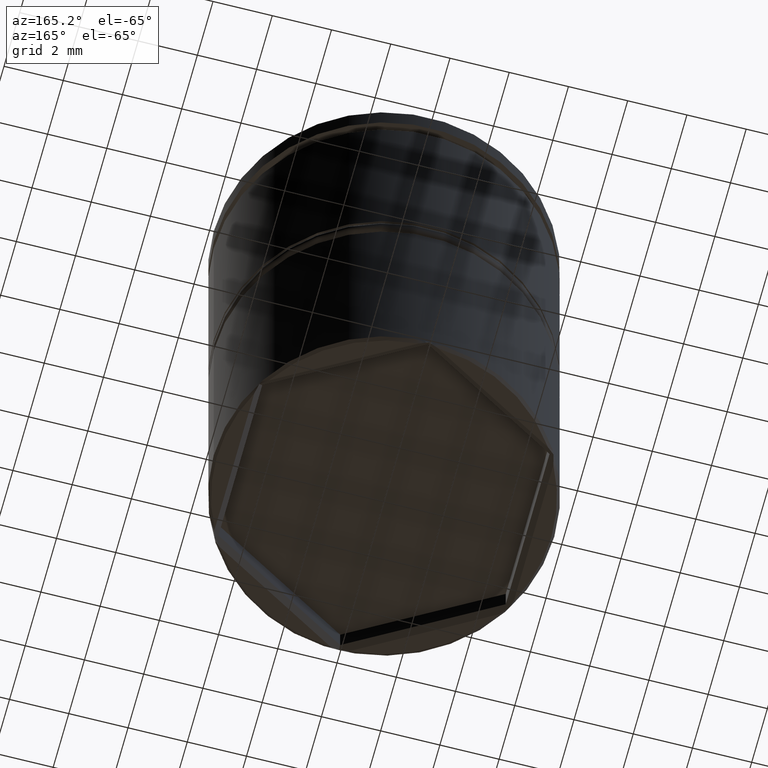
[diagram: clean part render]
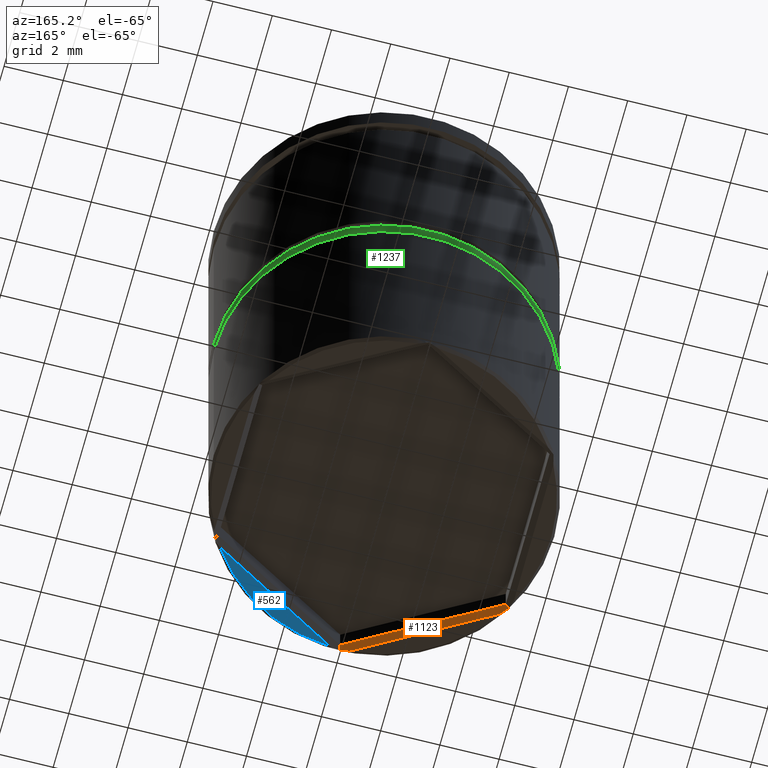
[diagram: same view with three faces highlighted in distinct colors, each labeled with its STEP entity id]
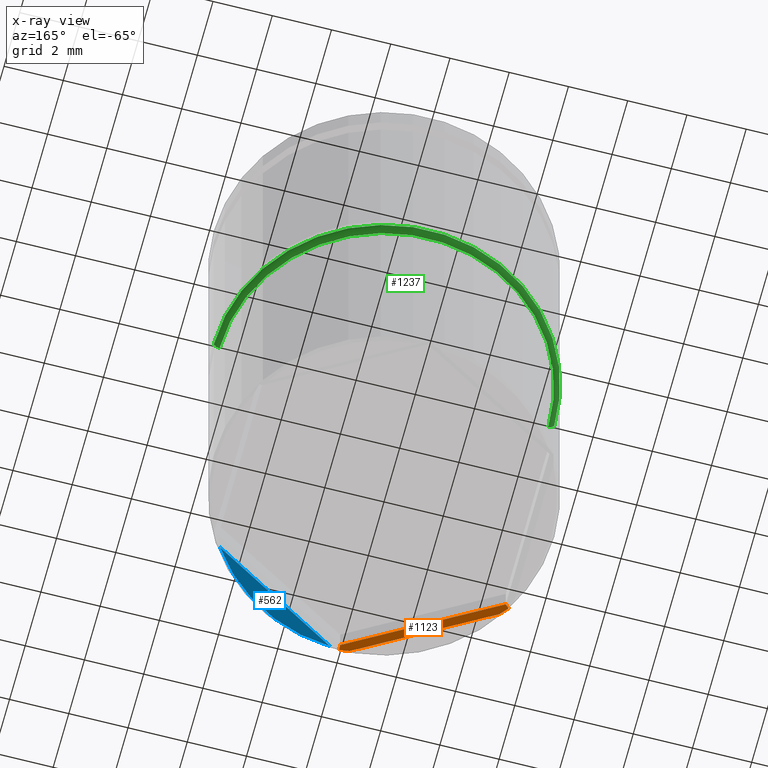
[diagram: x-ray of the same camera — body ghosted, the three highlighted faces saturated]
A machine part, auxiliary view with three faces highlighted in distinct colors.
The next image is the same camera in x-ray (body ghosted, the three faces saturated) — at least one of them is partly hidden behind the body in this view.
Their STEP definitions:

[orange] entity #1123 — the highlighted planar face has unit normal (0.3536, 0.6124, -0.7071).
#17 = LINE ( 'NONE', #656, #397 ) ;
#22 = DIRECTION ( 'NONE',  ( -0.8660254037844387076, 0.5000000000000001110, 0.000000000000000000 ) ) ;
#55 = ORIENTED_EDGE ( 'NONE', *, *, #841, .F. ) ;
#71 = VECTOR ( 'NONE', #95, 1000.000000000000114 ) ;
#87 = CARTESIAN_POINT ( 'NONE',  ( -0.1000000000000014766, -5.773502691896256422, -17.50000000000000000 ) ) ;
#95 = DIRECTION ( 'NONE',  ( 0.6546536707079763096, 0.3779644730092298621, 0.6546536707079763096 ) ) ;
#104 = LINE ( 'NONE', #739, #71 ) ;
#113 = AXIS2_PLACEMENT_3D ( 'NONE', #1088, #995, #124 ) ;
#124 = DIRECTION ( 'NONE',  ( 0.8660254037844385966, -0.5000000000000000000, 0.000000000000000000 ) ) ;
#132 = B_SPLINE_CURVE_WITH_KNOTS ( 'NONE', 3,
 ( #158, #1248, #384, #1339 ),
 .UNSPECIFIED., .F., .F.,
 ( 4, 4 ),
 ( 0.000000000000000000, 0.0003538762985991944000 ),
 .UNSPECIFIED. ) ;
#151 = DIRECTION ( 'NONE',  ( 3.273073911316233196E-15, 0.7559289460184549503, 0.6546536707079766426 ) ) ;
#158 = CARTESIAN_POINT ( 'NONE',  ( -0.3306891742508371590, -5.640314235043404345, -17.50000000000000000 ) ) ;
#176 = EDGE_CURVE ( 'NONE', #363, #595, #17, .T. ) ;
#186 = LINE ( 'NONE', #87, #1057 ) ;
#215 = CARTESIAN_POINT ( 'NONE',  ( -4.885138570890572574, -2.947805070096411573, -17.44544336155334818 ) ) ;
#266 = CARTESIAN_POINT ( 'NONE',  ( 2.666455773353224131E-18, -5.600297611139365195, -17.30000000000000071 ) ) ;
#270 = EDGE_CURVE ( 'NONE', #357, #1287, #132, .T. ) ;
#284 = VERTEX_POINT ( 'NONE', #1013 ) ;
#291 = CARTESIAN_POINT ( 'NONE',  ( -9.234123883010430029E-16, -5.734112718026023181, -17.41588728197397629 ) ) ;
#317 = B_SPLINE_CURVE_WITH_KNOTS ( 'NONE', 3,
 ( #947, #215, #1372, #975 ),
 .UNSPECIFIED., .F., .F.,
 ( 4, 4 ),
 ( 0.000000000000000000, 0.0003538762985991957010 ),
 .UNSPECIFIED. ) ;
#357 = VERTEX_POINT ( 'NONE', #367 ) ;
#363 = VERTEX_POINT ( 'NONE', #912 ) ;
#367 = CARTESIAN_POINT ( 'NONE',  ( -0.3306891742508371590, -5.640314235043404345, -17.50000000000000000 ) ) ;
#382 = DIRECTION ( 'NONE',  ( 0.8660254037844385966, -0.5000000000000001110, 0.000000000000000000 ) ) ;
#384 = CARTESIAN_POINT ( 'NONE',  ( -0.1103047906627745572, -5.704556638446649508, -17.44544336155335174 ) ) ;
#397 = VECTOR ( 'NONE', #22, 999.9999999999998863 ) ;
#416 = EDGE_CURVE ( 'NONE', #284, #1247, #317, .T. ) ;
#498 = ORIENTED_EDGE ( 'NONE', *, *, #582, .F. ) ;
#554 = ORIENTED_EDGE ( 'NONE', *, *, #176, .F. ) ;
#582 = EDGE_CURVE ( 'NONE', #1287, #363, #1117, .T. ) ;
#592 = CARTESIAN_POINT ( 'NONE',  ( -4.719310825749163385, -3.106542343179425458, -17.50000000000000000 ) ) ;
#595 = VERTEX_POINT ( 'NONE', #1014 ) ;
#656 = CARTESIAN_POINT ( 'NONE',  ( -4.849999999999996980, -2.800148805569682153, -17.30000000000000071 ) ) ;
#682 = ORIENTED_EDGE ( 'NONE', *, *, #416, .F. ) ;
#712 = VECTOR ( 'NONE', #151, 999.9999999999998863 ) ;
#739 = CARTESIAN_POINT ( 'NONE',  ( -4.849999999999996980, -2.800148805569682153, -17.30000000000000071 ) ) ;
#841 = EDGE_CURVE ( 'NONE', #1247, #357, #186, .T. ) ;
#875 = ORIENTED_EDGE ( 'NONE', *, *, #949, .T. ) ;
#902 = PLANE ( 'NONE',  #113 ) ;
#912 = CARTESIAN_POINT ( 'NONE',  ( 2.666455773353224131E-18, -5.600297611139365195, -17.30000000000000071 ) ) ;
#933 = ORIENTED_EDGE ( 'NONE', *, *, #270, .F. ) ;
#947 = CARTESIAN_POINT ( 'NONE',  ( -4.965887281973972556, -2.867056359013011591, -17.41588728197397273 ) ) ;
#949 = EDGE_CURVE ( 'NONE', #284, #595, #104, .T. ) ;
#975 = CARTESIAN_POINT ( 'NONE',  ( -4.719310825749163385, -3.106542343179425458, -17.50000000000000000 ) ) ;
#995 = DIRECTION ( 'NONE',  ( 0.3535533905932730647, 0.6123724356957932491, -0.7071067811865489050 ) ) ;
#1013 = CARTESIAN_POINT ( 'NONE',  ( -4.965887281973972556, -2.867056359013011591, -17.41588728197397273 ) ) ;
#1014 = CARTESIAN_POINT ( 'NONE',  ( -4.849999999999996980, -2.800148805569682153, -17.30000000000000071 ) ) ;
#1057 = VECTOR ( 'NONE', #382, 1000.000000000000114 ) ;
#1088 = CARTESIAN_POINT ( 'NONE',  ( 2.666455773353224131E-18, -5.600297611139365195, -17.30000000000000071 ) ) ;
#1100 = EDGE_LOOP ( 'NONE', ( #875, #554, #498, #933, #55, #682 ) ) ;
#1117 = LINE ( 'NONE', #266, #712 ) ;
#1123 = ADVANCED_FACE ( 'NONE', ( #1193 ), #902, .T. ) ;
#1193 = FACE_OUTER_BOUND ( 'NONE', #1100, .T. ) ;
#1247 = VERTEX_POINT ( 'NONE', #592 ) ;
#1248 = CARTESIAN_POINT ( 'NONE',  ( -0.2205779257049754194, -5.673302469441649620, -17.47351302474194767 ) ) ;
#1287 = VERTEX_POINT ( 'NONE', #291 ) ;
#1339 = CARTESIAN_POINT ( 'NONE',  ( -9.234123883010430029E-16, -5.734112718026023181, -17.41588728197397629 ) ) ;
#1372 = CARTESIAN_POINT ( 'NONE',  ( -4.802935099036970357, -3.027677321895408724, -17.47351302474194767 ) ) ;

[blue] entity #562 — the highlighted planar face has unit normal (0, 0, -1).
#39 = ORIENTED_EDGE ( 'NONE', *, *, #1174, .T. ) ;
#42 = CARTESIAN_POINT ( 'NONE',  ( 4.949999999999997513, -2.973353886326572937, -17.50000000000000000 ) ) ;
#68 = DIRECTION ( 'NONE',  ( -1.000000000000000000, 0.000000000000000000, -0.000000000000000000 ) ) ;
#196 = AXIS2_PLACEMENT_3D ( 'NONE', #1003, #378, #68 ) ;
#235 = VERTEX_POINT ( 'NONE', #774 ) ;
#323 = DIRECTION ( 'NONE',  ( 0.8660254037844388186, 0.4999999999999997780, 0.000000000000000000 ) ) ;
#327 = VECTOR ( 'NONE', #323, 1000.000000000000114 ) ;
#362 = PLANE ( 'NONE',  #196 ) ;
#378 = DIRECTION ( 'NONE',  ( 0.000000000000000000, 0.000000000000000000, -1.000000000000000000 ) ) ;
#395 = CARTESIAN_POINT ( 'NONE',  ( 0.3306891742508328291, -5.640314235043405233, -17.50000000000000000 ) ) ;
#452 = EDGE_CURVE ( 'NONE', #826, #235, #557, .T. ) ;
#541 = CARTESIAN_POINT ( 'NONE',  ( 0.000000000000000000, 0.000000000000000000, -17.50000000000000000 ) ) ;
#555 = DIRECTION ( 'NONE',  ( -1.000000000000000000, 0.000000000000000000, 0.000000000000000000 ) ) ;
#557 = LINE ( 'NONE', #42, #327 ) ;
#562 = ADVANCED_FACE ( 'NONE', ( #1224 ), #362, .T. ) ;
#774 = CARTESIAN_POINT ( 'NONE',  ( 4.719310825749163385, -3.106542343179425458, -17.50000000000000000 ) ) ;
#826 = VERTEX_POINT ( 'NONE', #395 ) ;
#839 = ORIENTED_EDGE ( 'NONE', *, *, #452, .T. ) ;
#967 = AXIS2_PLACEMENT_3D ( 'NONE', #541, #1111, #555 ) ;
#1003 = CARTESIAN_POINT ( 'NONE',  ( 0.000000000000000000, 5.750000000000000000, -17.50000000000000000 ) ) ;
#1080 = CIRCLE ( 'NONE', #967, 5.649999999999996803 ) ;
#1111 = DIRECTION ( 'NONE',  ( 0.000000000000000000, 0.000000000000000000, -1.000000000000000000 ) ) ;
#1174 = EDGE_CURVE ( 'NONE', #235, #826, #1080, .T. ) ;
#1224 = FACE_OUTER_BOUND ( 'NONE', #1300, .T. ) ;
#1300 = EDGE_LOOP ( 'NONE', ( #39, #839 ) ) ;

[green] entity #1237 — the highlighted toroidal blend (fillet) surface has major radius 5.55 mm and minor (blend) radius 0.2 mm.
#16 = CARTESIAN_POINT ( 'NONE',  ( -5.750000000000000000, 7.041719095097280880E-16, -8.800000000000002487 ) ) ;
#118 = DIRECTION ( 'NONE',  ( -1.000000000000000000, 1.224646799147353454E-16, 0.000000000000000000 ) ) ;
#120 = CARTESIAN_POINT ( 'NONE',  ( 5.750000000000000000, 0.000000000000000000, -8.800000000000002487 ) ) ;
#126 = CARTESIAN_POINT ( 'NONE',  ( -5.549999999999999822, 6.796789735267810781E-16, -8.800000000000002487 ) ) ;
#193 = CARTESIAN_POINT ( 'NONE',  ( -5.549999999999999822, 6.919254415182546323E-16, -9.000000000000001776 ) ) ;
#217 = EDGE_CURVE ( 'NONE', #406, #1040, #1185, .T. ) ;
#228 = ORIENTED_EDGE ( 'NONE', *, *, #732, .F. ) ;
#229 = DIRECTION ( 'NONE',  ( -0.000000000000000000, -0.000000000000000000, -1.000000000000000000 ) ) ;
#232 = EDGE_CURVE ( 'NONE', #1154, #1040, #848, .T. ) ;
#239 = CIRCLE ( 'NONE', #661, 0.2000000000000005107 ) ;
#330 = AXIS2_PLACEMENT_3D ( 'NONE', #532, #229, #364 ) ;
#364 = DIRECTION ( 'NONE',  ( 1.000000000000000000, 0.000000000000000000, 0.000000000000000000 ) ) ;
#370 = FACE_OUTER_BOUND ( 'NONE', #608, .T. ) ;
#387 = DIRECTION ( 'NONE',  ( 1.000000000000000000, 0.000000000000000000, 0.000000000000000000 ) ) ;
#406 = VERTEX_POINT ( 'NONE', #193 ) ;
#464 = TOROIDAL_SURFACE ( 'NONE', #896, 5.549999999999999822, 0.2000000000000000111 ) ;
#532 = CARTESIAN_POINT ( 'NONE',  ( 0.000000000000000000, 0.000000000000000000, -9.000000000000001776 ) ) ;
#597 = CIRCLE ( 'NONE', #330, 5.549999999999999822 ) ;
#608 = EDGE_LOOP ( 'NONE', ( #711, #1337, #1328, #228 ) ) ;
#647 = DIRECTION ( 'NONE',  ( 1.224646799147353207E-16, 1.000000000000000000, -0.000000000000000000 ) ) ;
#661 = AXIS2_PLACEMENT_3D ( 'NONE', #775, #992, #996 ) ;
#694 = CARTESIAN_POINT ( 'NONE',  ( 0.000000000000000000, 0.000000000000000000, -8.800000000000002487 ) ) ;
#711 = ORIENTED_EDGE ( 'NONE', *, *, #1067, .F. ) ;
#732 = EDGE_CURVE ( 'NONE', #1347, #1154, #239, .T. ) ;
#775 = CARTESIAN_POINT ( 'NONE',  ( 5.549999999999999822, 0.000000000000000000, -8.800000000000002487 ) ) ;
#848 = CIRCLE ( 'NONE', #1078, 5.750000000000000000 ) ;
#877 = DIRECTION ( 'NONE',  ( 0.000000000000000000, 0.000000000000000000, 1.000000000000000000 ) ) ;
#896 = AXIS2_PLACEMENT_3D ( 'NONE', #694, #909, #387 ) ;
#909 = DIRECTION ( 'NONE',  ( 0.000000000000000000, 0.000000000000000000, 1.000000000000000000 ) ) ;
#916 = AXIS2_PLACEMENT_3D ( 'NONE', #126, #647, #118 ) ;
#934 = CARTESIAN_POINT ( 'NONE',  ( 5.549999999999999822, 0.000000000000000000, -9.000000000000001776 ) ) ;
#992 = DIRECTION ( 'NONE',  ( 0.000000000000000000, -1.000000000000000000, 0.000000000000000000 ) ) ;
#996 = DIRECTION ( 'NONE',  ( 0.000000000000000000, 0.000000000000000000, -1.000000000000000000 ) ) ;
#1040 = VERTEX_POINT ( 'NONE', #16 ) ;
#1067 = EDGE_CURVE ( 'NONE', #406, #1347, #597, .T. ) ;
#1078 = AXIS2_PLACEMENT_3D ( 'NONE', #1089, #877, #1302 ) ;
#1089 = CARTESIAN_POINT ( 'NONE',  ( 0.000000000000000000, 0.000000000000000000, -8.800000000000002487 ) ) ;
#1154 = VERTEX_POINT ( 'NONE', #120 ) ;
#1185 = CIRCLE ( 'NONE', #916, 0.1999999999999996503 ) ;
#1237 = ADVANCED_FACE ( 'NONE', ( #370 ), #464, .T. ) ;
#1302 = DIRECTION ( 'NONE',  ( 1.000000000000000000, 0.000000000000000000, 0.000000000000000000 ) ) ;
#1328 = ORIENTED_EDGE ( 'NONE', *, *, #232, .F. ) ;
#1337 = ORIENTED_EDGE ( 'NONE', *, *, #217, .T. ) ;
#1347 = VERTEX_POINT ( 'NONE', #934 ) ;